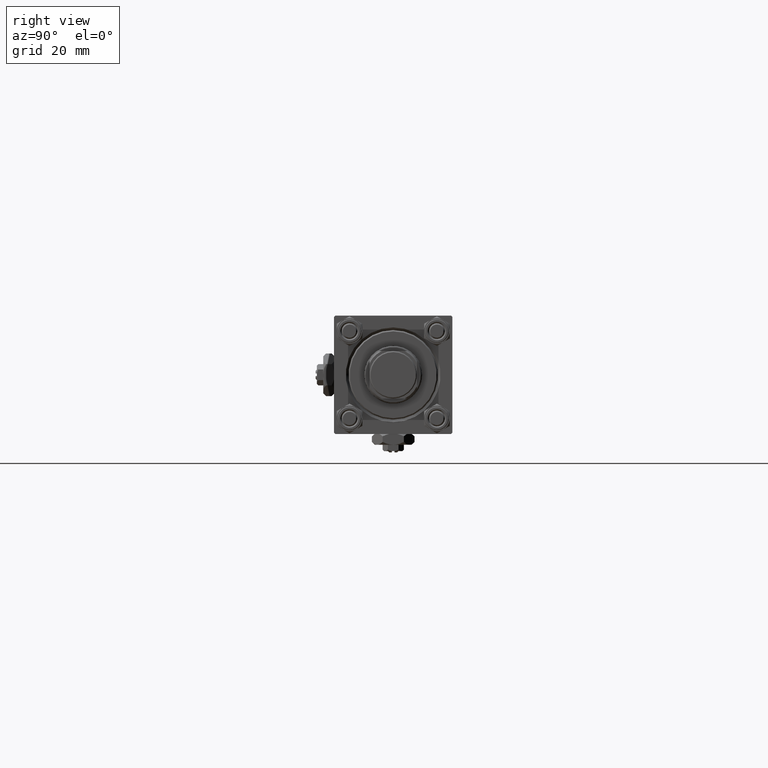
[diagram: clean part render]
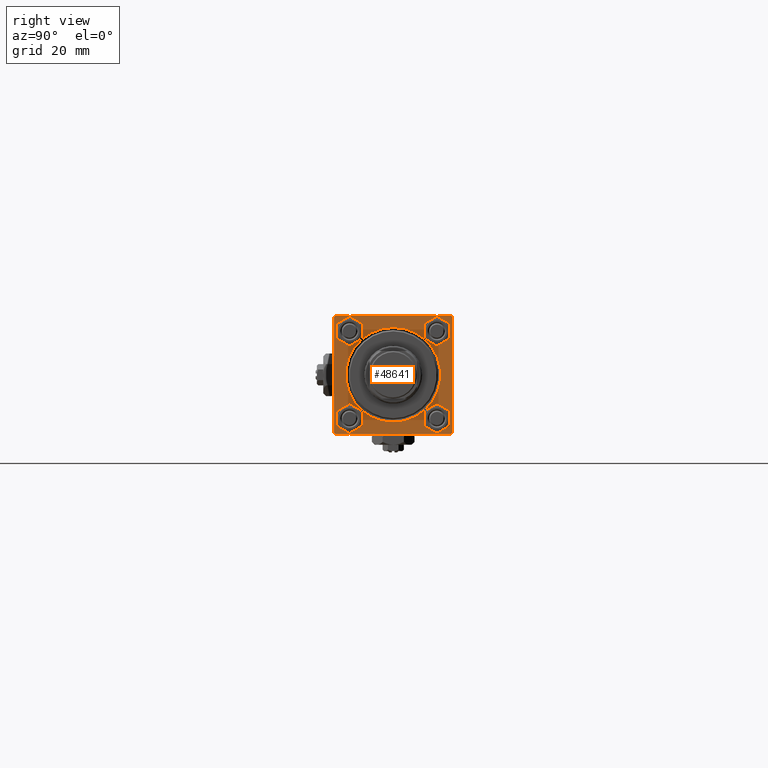
[diagram: same view with one face highlighted and labeled with its STEP entity id]
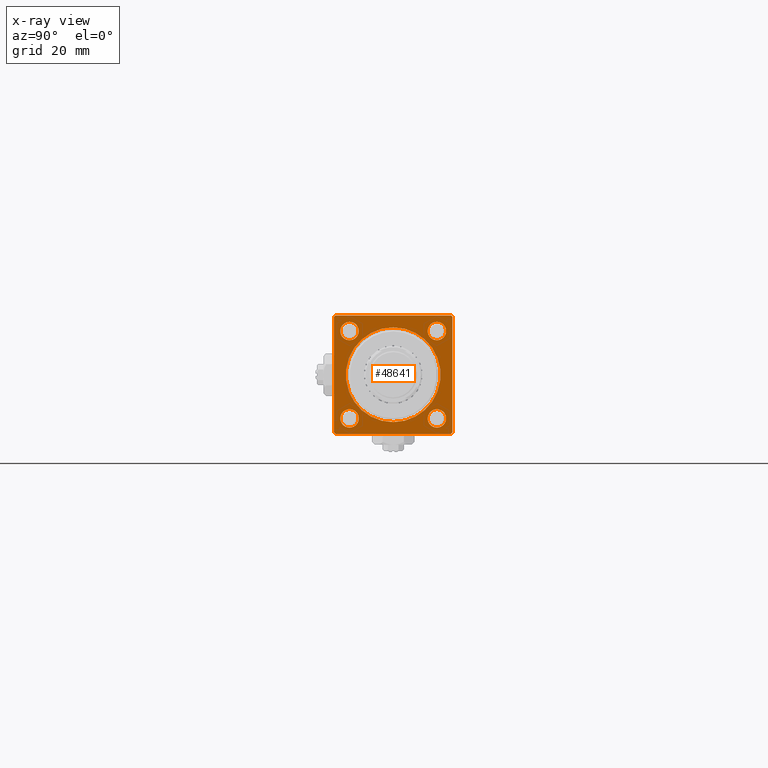
[diagram: x-ray of the same camera — body ghosted, the highlighted face saturated]
A machine part, right view. The second image highlights one B-rep face of the part: STEP entity #48641.
The next image is the same camera in x-ray: the body ghosted, the highlighted face saturated — about 0% of this face is hidden behind the body in this view.
In plain terms, the highlighted planar face has unit normal (-1, 0, 0).
Its self-contained STEP definition (entity closure, byte-faithful):
#277 = ORIENTED_EDGE ( 'NONE', *, *, #35706, .T. ) ;
#681 = CARTESIAN_POINT ( 'NONE',  ( 203.0000000000000000, 22.00000000000000355, 22.50000000000000355 ) ) ;
#832 = CIRCLE ( 'NONE', #30378, 3.500000000000031086 ) ;
#899 = LINE ( 'NONE', #25725, #1130 ) ;
#1130 = VECTOR ( 'NONE', #33671, 1000.000000000000000 ) ;
#1576 = DIRECTION ( 'NONE',  ( -1.000000000000000000, 0.000000000000000000, -0.000000000000000000 ) ) ;
#1682 = AXIS2_PLACEMENT_3D ( 'NONE', #30880, #1576, #50986 ) ;
#2453 = CARTESIAN_POINT ( 'NONE',  ( 203.0000000000000000, 22.00000000000000355, 22.50000000000000355 ) ) ;
#3152 = FACE_BOUND ( 'NONE', #31029, .T. ) ;
#3491 = EDGE_LOOP ( 'NONE', ( #34006, #22378 ) ) ;
#3748 = CARTESIAN_POINT ( 'NONE',  ( 203.0000000000000000, -22.49999999999999645, -21.99999999999995026 ) ) ;
#3888 = EDGE_CURVE ( 'NONE', #13721, #20386, #19181, .T. ) ;
#3915 = FACE_BOUND ( 'NONE', #21915, .T. ) ;
#4636 = DIRECTION ( 'NONE',  ( 0.000000000000000000, -0.7071067811865474617, 0.7071067811865474617 ) ) ;
#4687 = VERTEX_POINT ( 'NONE', #2453 ) ;
#4809 = VERTEX_POINT ( 'NONE', #3748 ) ;
#4983 = VERTEX_POINT ( 'NONE', #26173 ) ;
#5804 = DIRECTION ( 'NONE',  ( -1.000000000000000000, 0.000000000000000000, -0.000000000000000000 ) ) ;
#6369 = DIRECTION ( 'NONE',  ( 0.000000000000000000, 0.000000000000000000, -1.000000000000000000 ) ) ;
#6778 = VERTEX_POINT ( 'NONE', #43974 ) ;
#6788 = CARTESIAN_POINT ( 'NONE',  ( 203.0000000000000000, -16.59999999999999076, -16.60000000000000853 ) ) ;
#6965 = VECTOR ( 'NONE', #20231, 1000.000000000000114 ) ;
#6996 = EDGE_CURVE ( 'NONE', #25005, #44677, #7389, .T. ) ;
#7140 = VERTEX_POINT ( 'NONE', #8421 ) ;
#7172 = VECTOR ( 'NONE', #41774, 1000.000000000000114 ) ;
#7389 = CIRCLE ( 'NONE', #43712, 17.99999999999998934 ) ;
#7602 = CIRCLE ( 'NONE', #43922, 3.500000000000031086 ) ;
#7876 = EDGE_CURVE ( 'NONE', #13721, #4687, #24717, .T. ) ;
#8287 = VECTOR ( 'NONE', #4636, 1000.000000000000114 ) ;
#8313 = CIRCLE ( 'NONE', #30235, 3.500000000000031086 ) ;
#8421 = CARTESIAN_POINT ( 'NONE',  ( 203.0000000000000000, -16.59999999999999076, 20.10000000000003695 ) ) ;
#8955 = EDGE_CURVE ( 'NONE', #33090, #32762, #41245, .T. ) ;
#9506 = DIRECTION ( 'NONE',  ( 0.000000000000000000, 0.000000000000000000, 1.000000000000000000 ) ) ;
#10572 = CIRCLE ( 'NONE', #11444, 3.500000000000031086 ) ;
#11274 = DIRECTION ( 'NONE',  ( -1.000000000000000000, 0.000000000000000000, -0.000000000000000000 ) ) ;
#11345 = FACE_BOUND ( 'NONE', #17422, .T. ) ;
#11444 = AXIS2_PLACEMENT_3D ( 'NONE', #14141, #29191, #30246 ) ;
#11805 = VECTOR ( 'NONE', #6369, 1000.000000000000000 ) ;
#11951 = ORIENTED_EDGE ( 'NONE', *, *, #48188, .F. ) ;
#12575 = ORIENTED_EDGE ( 'NONE', *, *, #3888, .F. ) ;
#12770 = VECTOR ( 'NONE', #17207, 1000.000000000000000 ) ;
#13018 = AXIS2_PLACEMENT_3D ( 'NONE', #6788, #11274, #39571 ) ;
#13246 = LINE ( 'NONE', #17737, #12770 ) ;
#13551 = EDGE_CURVE ( 'NONE', #6778, #24704, #8313, .T. ) ;
#13721 = VERTEX_POINT ( 'NONE', #14208 ) ;
#14141 = CARTESIAN_POINT ( 'NONE',  ( 203.0000000000000000, -16.59999999999999076, 16.60000000000000853 ) ) ;
#14208 = CARTESIAN_POINT ( 'NONE',  ( 203.0000000000000000, 22.50000000000000355, 22.00000000000000355 ) ) ;
#14566 = CARTESIAN_POINT ( 'NONE',  ( 203.0000000000000000, 2.204364238465234244E-15, 17.99999999999998934 ) ) ;
#14947 = CARTESIAN_POINT ( 'NONE',  ( 203.0000000000000000, 22.50000000000000355, -22.49999999999999645 ) ) ;
#15286 = ORIENTED_EDGE ( 'NONE', *, *, #6996, .T. ) ;
#15882 = DIRECTION ( 'NONE',  ( 0.000000000000000000, 0.000000000000000000, 1.000000000000000000 ) ) ;
#16372 = ORIENTED_EDGE ( 'NONE', *, *, #32590, .T. ) ;
#16660 = DIRECTION ( 'NONE',  ( 0.000000000000000000, 0.000000000000000000, 1.000000000000000000 ) ) ;
#16841 = EDGE_CURVE ( 'NONE', #32762, #33090, #32870, .T. ) ;
#17108 = CARTESIAN_POINT ( 'NONE',  ( 203.0000000000000000, -16.59999999999999076, 13.09999999999997655 ) ) ;
#17207 = DIRECTION ( 'NONE',  ( 0.000000000000000000, 0.7071067811865426878, -0.7071067811865524577 ) ) ;
#17221 = CARTESIAN_POINT ( 'NONE',  ( 203.0000000000000000, 16.59999999999999787, 13.09999999999997300 ) ) ;
#17422 = EDGE_LOOP ( 'NONE', ( #38922, #52269 ) ) ;
#17737 = CARTESIAN_POINT ( 'NONE',  ( 203.0000000000000000, -21.99999999999996803, -22.50000000000000000 ) ) ;
#17966 = VERTEX_POINT ( 'NONE', #50657 ) ;
#18021 = DIRECTION ( 'NONE',  ( 0.000000000000000000, 0.000000000000000000, 1.000000000000000000 ) ) ;
#18044 = EDGE_CURVE ( 'NONE', #24704, #6778, #7602, .T. ) ;
#18406 = DIRECTION ( 'NONE',  ( -1.000000000000000000, 0.000000000000000000, -0.000000000000000000 ) ) ;
#18571 = ORIENTED_EDGE ( 'NONE', *, *, #37001, .T. ) ;
#19181 = LINE ( 'NONE', #43790, #25098 ) ;
#20032 = PLANE ( 'NONE',  #40737 ) ;
#20231 = DIRECTION ( 'NONE',  ( -0.000000000000000000, 0.7071067811865474617, 0.7071067811865474617 ) ) ;
#20386 = VERTEX_POINT ( 'NONE', #32527 ) ;
#20696 = CIRCLE ( 'NONE', #50279, 17.99999999999998934 ) ;
#20823 = EDGE_CURVE ( 'NONE', #36311, #17966, #832, .T. ) ;
#20882 = CARTESIAN_POINT ( 'NONE',  ( 203.0000000000000000, 0.000000000000000000, 0.000000000000000000 ) ) ;
#21654 = CARTESIAN_POINT ( 'NONE',  ( 203.0000000000000000, -16.59999999999999076, -16.60000000000000853 ) ) ;
#21670 = EDGE_CURVE ( 'NONE', #34504, #7140, #26185, .T. ) ;
#21712 = DIRECTION ( 'NONE',  ( -1.000000000000000000, 0.000000000000000000, -0.000000000000000000 ) ) ;
#21915 = EDGE_LOOP ( 'NONE', ( #46710, #32649 ) ) ;
#22287 = CARTESIAN_POINT ( 'NONE',  ( 203.0000000000000000, 16.59999999999999787, -13.09999999999997300 ) ) ;
#22378 = ORIENTED_EDGE ( 'NONE', *, *, #36481, .T. ) ;
#22604 = DIRECTION ( 'NONE',  ( 0.000000000000000000, -1.000000000000000000, -7.709882115452476934E-17 ) ) ;
#22616 = DIRECTION ( 'NONE',  ( 0.000000000000000000, 0.000000000000000000, 1.000000000000000000 ) ) ;
#22775 = ORIENTED_EDGE ( 'NONE', *, *, #38528, .T. ) ;
#24186 = CARTESIAN_POINT ( 'NONE',  ( 203.0000000000000000, -16.59999999999999076, -20.10000000000003695 ) ) ;
#24704 = VERTEX_POINT ( 'NONE', #17221 ) ;
#24717 = LINE ( 'NONE', #681, #8287 ) ;
#25005 = VERTEX_POINT ( 'NONE', #14566 ) ;
#25098 = VECTOR ( 'NONE', #43000, 1000.000000000000000 ) ;
#25350 = CARTESIAN_POINT ( 'NONE',  ( 203.0000000000000000, -22.49999999999999645, 21.99999999999999289 ) ) ;
#25396 = CARTESIAN_POINT ( 'NONE',  ( 203.0000000000000000, 0.000000000000000000, 0.000000000000000000 ) ) ;
#25725 = CARTESIAN_POINT ( 'NONE',  ( 203.0000000000000000, 22.50000000000000355, 22.50000000000000355 ) ) ;
#26173 = CARTESIAN_POINT ( 'NONE',  ( 203.0000000000000000, -22.49999999999999645, 21.99999999999999289 ) ) ;
#26185 = CIRCLE ( 'NONE', #42263, 3.500000000000031086 ) ;
#26436 = LINE ( 'NONE', #42601, #11805 ) ;
#28726 = ORIENTED_EDGE ( 'NONE', *, *, #16841, .T. ) ;
#29191 = DIRECTION ( 'NONE',  ( -1.000000000000000000, 0.000000000000000000, -0.000000000000000000 ) ) ;
#29733 = VECTOR ( 'NONE', #22604, 1000.000000000000000 ) ;
#30235 = AXIS2_PLACEMENT_3D ( 'NONE', #46013, #49692, #9506 ) ;
#30246 = DIRECTION ( 'NONE',  ( 0.000000000000000000, 0.000000000000000000, 1.000000000000000000 ) ) ;
#30378 = AXIS2_PLACEMENT_3D ( 'NONE', #21654, #5804, #37797 ) ;
#30880 = CARTESIAN_POINT ( 'NONE',  ( 203.0000000000000000, 16.59999999999999787, -16.60000000000000497 ) ) ;
#31029 = EDGE_LOOP ( 'NONE', ( #18571, #15286 ) ) ;
#31141 = VERTEX_POINT ( 'NONE', #35294 ) ;
#31380 = VERTEX_POINT ( 'NONE', #51612 ) ;
#32011 = ORIENTED_EDGE ( 'NONE', *, *, #7876, .T. ) ;
#32131 = CARTESIAN_POINT ( 'NONE',  ( 203.0000000000000000, 22.50000000000000355, -21.99999999999999645 ) ) ;
#32469 = DIRECTION ( 'NONE',  ( -0.000000000000000000, 0.000000000000000000, 1.000000000000000000 ) ) ;
#32527 = CARTESIAN_POINT ( 'NONE',  ( 203.0000000000000000, 22.50000000000000355, -21.99999999999998224 ) ) ;
#32590 = EDGE_CURVE ( 'NONE', #4687, #31141, #899, .T. ) ;
#32649 = ORIENTED_EDGE ( 'NONE', *, *, #34990, .T. ) ;
#32700 = CARTESIAN_POINT ( 'NONE',  ( 203.0000000000000000, -21.99999999999995381, -22.50000000000000000 ) ) ;
#32762 = VERTEX_POINT ( 'NONE', #22287 ) ;
#32870 = CIRCLE ( 'NONE', #1682, 3.500000000000031086 ) ;
#33090 = VERTEX_POINT ( 'NONE', #51562 ) ;
#33540 = VERTEX_POINT ( 'NONE', #32700 ) ;
#33671 = DIRECTION ( 'NONE',  ( 0.000000000000000000, -1.000000000000000000, -2.312964634635742957E-16 ) ) ;
#34006 = ORIENTED_EDGE ( 'NONE', *, *, #21670, .T. ) ;
#34443 = DIRECTION ( 'NONE',  ( 0.000000000000000000, 0.000000000000000000, 1.000000000000000000 ) ) ;
#34504 = VERTEX_POINT ( 'NONE', #17108 ) ;
#34936 = EDGE_LOOP ( 'NONE', ( #22775, #36149, #11951, #47759, #12575, #32011, #16372, #277 ) ) ;
#34990 = EDGE_CURVE ( 'NONE', #17966, #36311, #44286, .T. ) ;
#35195 = ORIENTED_EDGE ( 'NONE', *, *, #8955, .T. ) ;
#35294 = CARTESIAN_POINT ( 'NONE',  ( 203.0000000000000000, -21.99999999999998224, 22.49999999999999289 ) ) ;
#35328 = CARTESIAN_POINT ( 'NONE',  ( 203.0000000000000000, 0.000000000000000000, -17.99999999999998934 ) ) ;
#35664 = DIRECTION ( 'NONE',  ( -1.000000000000000000, 0.000000000000000000, -0.000000000000000000 ) ) ;
#35706 = EDGE_CURVE ( 'NONE', #31141, #4983, #50738, .T. ) ;
#36149 = ORIENTED_EDGE ( 'NONE', *, *, #42059, .T. ) ;
#36311 = VERTEX_POINT ( 'NONE', #24186 ) ;
#36443 = FACE_BOUND ( 'NONE', #3491, .T. ) ;
#36481 = EDGE_CURVE ( 'NONE', #7140, #34504, #10572, .T. ) ;
#37001 = EDGE_CURVE ( 'NONE', #44677, #25005, #20696, .T. ) ;
#37797 = DIRECTION ( 'NONE',  ( 0.000000000000000000, 0.000000000000000000, 1.000000000000000000 ) ) ;
#38528 = EDGE_CURVE ( 'NONE', #4983, #4809, #26436, .T. ) ;
#38922 = ORIENTED_EDGE ( 'NONE', *, *, #18044, .T. ) ;
#39571 = DIRECTION ( 'NONE',  ( 0.000000000000000000, 0.000000000000000000, 1.000000000000000000 ) ) ;
#40211 = CARTESIAN_POINT ( 'NONE',  ( 203.0000000000000000, -16.59999999999999076, 16.60000000000000853 ) ) ;
#40737 = AXIS2_PLACEMENT_3D ( 'NONE', #43612, #35664, #32469 ) ;
#41245 = CIRCLE ( 'NONE', #49695, 3.500000000000031086 ) ;
#41260 = DIRECTION ( 'NONE',  ( -1.000000000000000000, 0.000000000000000000, -0.000000000000000000 ) ) ;
#41774 = DIRECTION ( 'NONE',  ( -0.000000000000000000, -0.7071067811865474617, -0.7071067811865474617 ) ) ;
#42059 = EDGE_CURVE ( 'NONE', #4809, #33540, #13246, .T. ) ;
#42127 = CARTESIAN_POINT ( 'NONE',  ( 203.0000000000000000, 16.59999999999999787, -16.60000000000000497 ) ) ;
#42263 = AXIS2_PLACEMENT_3D ( 'NONE', #40211, #48142, #15882 ) ;
#42601 = CARTESIAN_POINT ( 'NONE',  ( 203.0000000000000000, -22.49999999999999645, 22.49999999999999289 ) ) ;
#42744 = CARTESIAN_POINT ( 'NONE',  ( 203.0000000000000000, 16.59999999999999787, 16.60000000000000497 ) ) ;
#43000 = DIRECTION ( 'NONE',  ( 0.000000000000000000, 0.000000000000000000, -1.000000000000000000 ) ) ;
#43612 = CARTESIAN_POINT ( 'NONE',  ( 203.0000000000000000, 0.000000000000000000, 0.000000000000000000 ) ) ;
#43712 = AXIS2_PLACEMENT_3D ( 'NONE', #25396, #21712, #18021 ) ;
#43790 = CARTESIAN_POINT ( 'NONE',  ( 203.0000000000000000, 22.50000000000000355, 22.50000000000000355 ) ) ;
#43922 = AXIS2_PLACEMENT_3D ( 'NONE', #42744, #18406, #22616 ) ;
#43974 = CARTESIAN_POINT ( 'NONE',  ( 203.0000000000000000, 16.59999999999999787, 20.10000000000003340 ) ) ;
#44060 = LINE ( 'NONE', #32131, #6965 ) ;
#44132 = FACE_OUTER_BOUND ( 'NONE', #34936, .T. ) ;
#44286 = CIRCLE ( 'NONE', #13018, 3.500000000000031086 ) ;
#44677 = VERTEX_POINT ( 'NONE', #35328 ) ;
#45500 = EDGE_CURVE ( 'NONE', #31380, #20386, #44060, .T. ) ;
#46013 = CARTESIAN_POINT ( 'NONE',  ( 203.0000000000000000, 16.59999999999999787, 16.60000000000000497 ) ) ;
#46696 = LINE ( 'NONE', #14947, #29733 ) ;
#46710 = ORIENTED_EDGE ( 'NONE', *, *, #20823, .T. ) ;
#47076 = EDGE_LOOP ( 'NONE', ( #35195, #28726 ) ) ;
#47759 = ORIENTED_EDGE ( 'NONE', *, *, #45500, .T. ) ;
#48142 = DIRECTION ( 'NONE',  ( -1.000000000000000000, 0.000000000000000000, -0.000000000000000000 ) ) ;
#48188 = EDGE_CURVE ( 'NONE', #31380, #33540, #46696, .T. ) ;
#48604 = FACE_BOUND ( 'NONE', #47076, .T. ) ;
#48641 = ADVANCED_FACE ( 'NONE', ( #3915, #48604, #11345, #36443, #3152, #44132 ), #20032, .F. ) ;
#49692 = DIRECTION ( 'NONE',  ( -1.000000000000000000, 0.000000000000000000, -0.000000000000000000 ) ) ;
#49695 = AXIS2_PLACEMENT_3D ( 'NONE', #42127, #50565, #34443 ) ;
#50279 = AXIS2_PLACEMENT_3D ( 'NONE', #20882, #41260, #16660 ) ;
#50565 = DIRECTION ( 'NONE',  ( -1.000000000000000000, 0.000000000000000000, -0.000000000000000000 ) ) ;
#50657 = CARTESIAN_POINT ( 'NONE',  ( 203.0000000000000000, -16.59999999999999076, -13.09999999999997655 ) ) ;
#50738 = LINE ( 'NONE', #25350, #7172 ) ;
#50986 = DIRECTION ( 'NONE',  ( 0.000000000000000000, 0.000000000000000000, 1.000000000000000000 ) ) ;
#51562 = CARTESIAN_POINT ( 'NONE',  ( 203.0000000000000000, 16.59999999999999787, -20.10000000000003340 ) ) ;
#51612 = CARTESIAN_POINT ( 'NONE',  ( 203.0000000000000000, 22.00000000000000355, -22.49999999999999645 ) ) ;
#52269 = ORIENTED_EDGE ( 'NONE', *, *, #13551, .T. ) ;